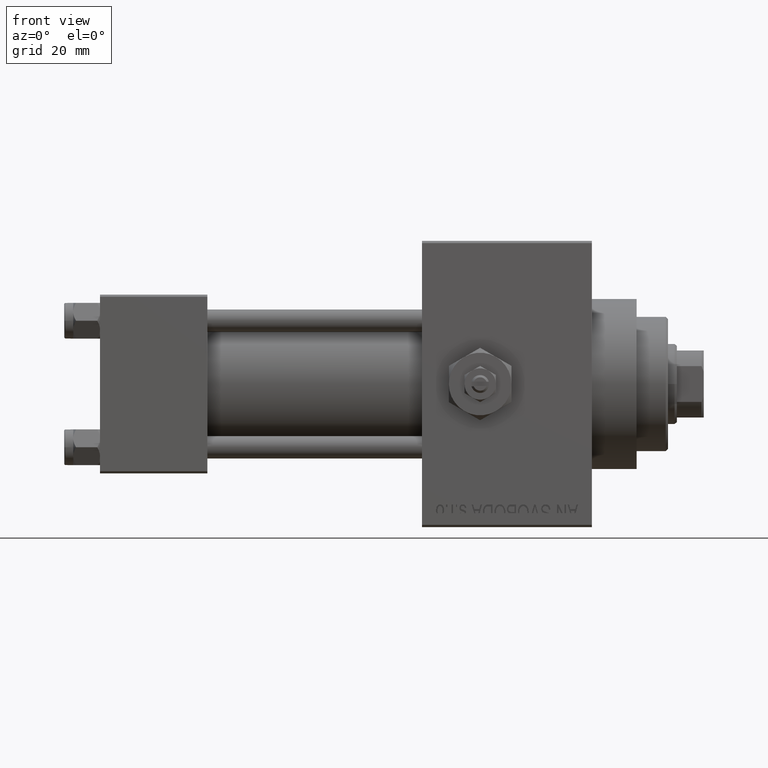
[diagram: clean part render]
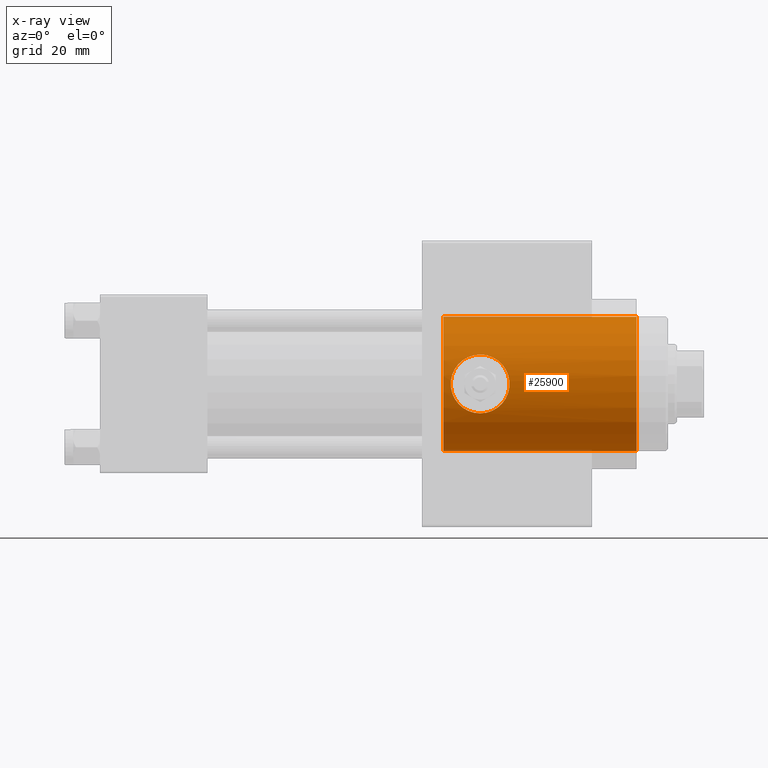
[diagram: x-ray — body ghosted, one internal face saturated and labeled with its STEP entity id]
A machine part, front view, then the same camera in x-ray: the body is ghosted and one INTERNAL B-rep face — a face not visible from any outside direction — is saturated and labeled: STEP entity #25900.
In plain terms, the highlighted cylindrical surface (partial cylindrical patch) has radius 15 mm, axis along (1, 0, 0).
Its self-contained STEP definition (entity closure, byte-faithful):
#504 = CARTESIAN_POINT ( 'NONE',  ( 82.86167835274309823, -13.64268446355265851, 6.237809613683829468 ) ) ;
#651 = CARTESIAN_POINT ( 'NONE',  ( 85.00000000000000000, -13.47974777212095709, 6.580000000000003624 ) ) ;
#979 = CARTESIAN_POINT ( 'NONE',  ( 79.77579147565592166, -14.45501835222666820, 4.023081544292846701 ) ) ;
#1458 = CARTESIAN_POINT ( 'NONE',  ( 80.65891463605996137, -14.16065007311136270, -4.949399701149224562 ) ) ;
#2413 = CARTESIAN_POINT ( 'NONE',  ( 84.77976576957225063, -13.47974777212095887, -6.580000000000001847 ) ) ;
#2535 = CARTESIAN_POINT ( 'NONE',  ( 91.52575784058699071, -14.97627231213754584, 0.8711763860930707981 ) ) ;
#2764 = CARTESIAN_POINT ( 'NONE',  ( 88.31096684123878049, -13.87618552960414675, -5.702370364627030952 ) ) ;
#3009 = CARTESIAN_POINT ( 'NONE',  ( 88.48650847152661925, -13.92228281461390793, 5.584478018863566540 ) ) ;
#3256 = CARTESIAN_POINT ( 'NONE',  ( 85.87316574373049605, -13.50139811867546058, -6.536143893246464387 ) ) ;
#3925 = CARTESIAN_POINT ( 'NONE',  ( 78.46260593799071614, -14.98115675273381520, -0.8665568099934203294 ) ) ;
#4411 = CARTESIAN_POINT ( 'NONE',  ( 78.43084565717524015, -14.99523278132284787, 0.4364235941210448666 ) ) ;
#4615 = VERTEX_POINT ( 'NONE', #25507 ) ;
#4651 = CARTESIAN_POINT ( 'NONE',  ( 84.13064385872415585, -13.50600289092207440, 6.525983889071675925 ) ) ;
#5419 = VECTOR ( 'NONE', #6823, 1000.000000000000000 ) ;
#6352 = EDGE_CURVE ( 'NONE', #40013, #47693, #23559, .T. ) ;
#6460 = CARTESIAN_POINT ( 'NONE',  ( 90.70288243393881089, -14.63479585642885361, -3.310293569519745738 ) ) ;
#6823 = DIRECTION ( 'NONE',  ( 1.000000000000000000, -0.000000000000000000, -0.000000000000000000 ) ) ;
#6943 = CARTESIAN_POINT ( 'NONE',  ( 91.56927314805587059, -14.99528481447028838, 0.4348723903635141053 ) ) ;
#7581 = CARTESIAN_POINT ( 'NONE',  ( 120.0000000000000142, 0.000000000000000000, -15.00000000000000000 ) ) ;
#7850 = CARTESIAN_POINT ( 'NONE',  ( 79.30090292776975502, -14.63334225918083220, -3.316404157168713507 ) ) ;
#8101 = CARTESIAN_POINT ( 'NONE',  ( 82.26430108105013517, -13.75315794831779037, 5.988232083493421065 ) ) ;
#8643 = ORIENTED_EDGE ( 'NONE', *, *, #13142, .T. ) ;
#9304 = CARTESIAN_POINT ( 'NONE',  ( 83.90805391893893272, -13.52226282640780752, -6.492353317420135994 ) ) ;
#9798 = CARTESIAN_POINT ( 'NONE',  ( 82.86239657777149148, -13.64255120362250828, -6.238110883350524993 ) ) ;
#10268 = CARTESIAN_POINT ( 'NONE',  ( 76.74000000000000909, 0.000000000000000000, -15.00000000000000000 ) ) ;
#10390 = CARTESIAN_POINT ( 'NONE',  ( 89.50269527074148357, -14.21118671985628445, -4.802809199700705634 ) ) ;
#10571 = CARTESIAN_POINT ( 'NONE',  ( 76.74000000000000909, 0.000000000000000000, 0.000000000000000000 ) ) ;
#10884 = CARTESIAN_POINT ( 'NONE',  ( 87.13878146177962947, -13.64286136602062349, 6.237365205955837766 ) ) ;
#11134 = CARTESIAN_POINT ( 'NONE',  ( 91.40804349032757159, -14.92531832247590984, -1.510180672733296481 ) ) ;
#11560 = CARTESIAN_POINT ( 'NONE',  ( 78.76236211784039654, -14.85223465257905495, -2.138549503236193861 ) ) ;
#11835 = AXIS2_PLACEMENT_3D ( 'NONE', #10571, #14268, #28815 ) ;
#12039 = CARTESIAN_POINT ( 'NONE',  ( 80.49983985398333175, -14.21037004882084176, -4.805272457217937720 ) ) ;
#12277 = CARTESIAN_POINT ( 'NONE',  ( 78.63638581349505330, -14.90614495936063832, 1.729077508135216101 ) ) ;
#12511 = CARTESIAN_POINT ( 'NONE',  ( 78.50728137029052789, -14.96186780496583957, 1.090058911884875137 ) ) ;
#12749 = CARTESIAN_POINT ( 'NONE',  ( 81.15751958955149803, -14.01568356182468023, -5.345718961352345033 ) ) ;
#12916 = CARTESIAN_POINT ( 'NONE',  ( 76.74000000000000909, 1.836970198721029589E-15, 15.00000000000000000 ) ) ;
#13142 = EDGE_CURVE ( 'NONE', #47693, #40013, #23669, .T. ) ;
#13343 = EDGE_CURVE ( 'NONE', #4615, #37387, #15470, .T. ) ;
#13840 = CARTESIAN_POINT ( 'NONE',  ( 89.01940850816782813, -14.06206651057377144, 5.227207620255431841 ) ) ;
#14268 = DIRECTION ( 'NONE',  ( 1.000000000000000000, -0.000000000000000000, -0.000000000000000000 ) ) ;
#14330 = CARTESIAN_POINT ( 'NONE',  ( 87.73052902550057297, -13.75215651404907291, 5.990516584930650978 ) ) ;
#14577 = CARTESIAN_POINT ( 'NONE',  ( 90.69892933739659213, -14.63327528768227026, 3.316712846527268610 ) ) ;
#14699 = LINE ( 'NONE', #10268, #5419 ) ;
#14829 = CARTESIAN_POINT ( 'NONE',  ( 88.84399376657893299, -14.01607983476660557, -5.344707122218380846 ) ) ;
#14956 = ORIENTED_EDGE ( 'NONE', *, *, #13343, .T. ) ;
#15253 = CARTESIAN_POINT ( 'NONE',  ( 79.30105177495190105, -14.63329121316046333, 3.316553775544765603 ) ) ;
#15470 = CIRCLE ( 'NONE', #42986, 15.00000000000000000 ) ;
#15726 = CARTESIAN_POINT ( 'NONE',  ( 78.42006756141506685, -14.99997036306039533, 0.2190733554723955645 ) ) ;
#15969 = CARTESIAN_POINT ( 'NONE',  ( 80.65624331521809154, -14.16146637753285020, 4.947074378092639613 ) ) ;
#16206 = CARTESIAN_POINT ( 'NONE',  ( 79.09399458136050498, -14.71603582678075384, 2.932578663241304007 ) ) ;
#17421 = CARTESIAN_POINT ( 'NONE',  ( 81.69173184761270079, -13.87856594946466515, -5.691879387518341105 ) ) ;
#17537 = CARTESIAN_POINT ( 'NONE',  ( 90.90247971338871480, -14.71460193619369505, 2.940356773719579486 ) ) ;
#17771 = CARTESIAN_POINT ( 'NONE',  ( 87.14192174141366820, -13.64329079840355341, -6.236468868897489415 ) ) ;
#18013 = CARTESIAN_POINT ( 'NONE',  ( 91.23769844279932784, -14.85224310456072772, 2.139178080577201158 ) ) ;
#18264 = CARTESIAN_POINT ( 'NONE',  ( 91.53660967087539291, -14.98081735429027006, -0.8707480482462675031 ) ) ;
#18933 = CARTESIAN_POINT ( 'NONE',  ( 78.63525833330918147, -14.90662513822958957, -1.725834680156186129 ) ) ;
#19279 = AXIS2_PLACEMENT_3D ( 'NONE', #29786, #29532, #37392 ) ;
#19641 = EDGE_CURVE ( 'NONE', #33878, #37387, #14699, .T. ) ;
#20919 = CARTESIAN_POINT ( 'NONE',  ( 85.00000000000000000, -13.47974777212095887, -6.580000000000001847 ) ) ;
#21220 = CARTESIAN_POINT ( 'NONE',  ( 90.22411835450370177, -14.45495742940398465, -4.023617649562320153 ) ) ;
#21461 = CARTESIAN_POINT ( 'NONE',  ( 91.15299919068861811, -14.81746657544790047, -2.341560291187426923 ) ) ;
#21703 = CARTESIAN_POINT ( 'NONE',  ( 91.58012121812991779, -15.00005317434620622, 0.2142933741435528450 ) ) ;
#21943 = CARTESIAN_POINT ( 'NONE',  ( 85.43405175477769831, -13.47974777212095354, 6.580000000000002736 ) ) ;
#22219 = ORIENTED_EDGE ( 'NONE', *, *, #6352, .T. ) ;
#22795 = DIRECTION ( 'NONE',  ( 1.000000000000000000, 0.000000000000000000, 0.000000000000000000 ) ) ;
#23107 = CARTESIAN_POINT ( 'NONE',  ( 84.56596667356100738, -13.48498123534775495, 6.569312056245872888 ) ) ;
#23339 = CARTESIAN_POINT ( 'NONE',  ( 83.27345649452969667, -13.58324995945014102, 6.364304702644875356 ) ) ;
#23559 = B_SPLINE_CURVE_WITH_KNOTS ( 'NONE', 3,
 ( #29855, #29115, #3256, #44146, #17771, #40195, #2764, #14829, #43906, #28880, #10390, #25151, #21220, #6460, #36244, #21461, #36484, #47605, #11134, #18264, #40435, #21703, #6943, #2535, #48584, #36725, #18013, #17537, #14577, #32563, #40682, #44639, #13840, #3009, #33036, #48091, #14330, #10884, #29363, #44391, #21943, #36966 ),
 .UNSPECIFIED., .F., .F.,
 ( 4, 2, 2, 2, 2, 2, 2, 2, 2, 2, 2, 2, 2, 2, 2, 2, 2, 2, 2, 2, 4 ),
 ( 0.000000000000000000, 0.001302447285417393042, 0.002604894570834786083, 0.003907341856252179342, 0.004558565498960859275, 0.005209789141669538340, 0.006512236427086923359, 0.007814683712504310112, 0.008465907355212994381, 0.009117130997921680385, 0.01041957828333906107, 0.01107080192604775054, 0.01172202556875643828, 0.01302447285417381896, 0.01432692013959119791, 0.01562936742500857859, 0.01693181471042595407, 0.01758303835313464528, 0.01823426199584333648, 0.01953670928126067380, 0.02083915656667801111 ),
 .UNSPECIFIED. ) ;
#23572 = CARTESIAN_POINT ( 'NONE',  ( 81.69095337298264781, -13.87874643593712776, 5.691444089594273059 ) ) ;
#23669 = B_SPLINE_CURVE_WITH_KNOTS ( 'NONE', 3,
 ( #30998, #37898, #23107, #4651, #34674, #23339, #504, #8101, #30525, #23572, #38137, #45552, #46274, #15969, #41846, #37648, #979, #15253, #16206, #31234, #12277, #12511, #27297, #4411, #15726, #27530, #3925, #18933, #11560, #30279, #7850, #45311, #26572, #12039, #1458, #28021, #12749, #35883, #17421, #32446, #32201, #9798, #47489, #9304, #43053, #36119, #2413, #47245 ),
 .UNSPECIFIED., .F., .F.,
 ( 4, 2, 2, 2, 2, 2, 2, 2, 2, 2, 2, 2, 2, 2, 2, 2, 2, 2, 2, 2, 2, 2, 2, 4 ),
 ( 0.02083915656667801111, 0.02148971759061579431, 0.02214027861455357751, 0.02344140066242914044, 0.02409196168636692365, 0.02474252271030470685, 0.02539308373424248658, 0.02604364475818026978, 0.02734476680605580495, 0.02864588885393133666, 0.02994701090180687184, 0.03059757192574464116, 0.03124813294968240701, 0.03254925499755794566, 0.03385037704543347736, 0.03515149909330901601, 0.03645262114118455465, 0.03710318216512233092, 0.03775374318906012105, 0.03840430421299789732, 0.03905486523693568052, 0.04035598728481123998, 0.04100654830874904400, 0.04165710933268684801 ),
 .UNSPECIFIED. ) ;
#25100 = VERTEX_POINT ( 'NONE', #39884 ) ;
#25151 = CARTESIAN_POINT ( 'NONE',  ( 89.95193023626804063, -14.35775282579813172, -4.353636477094011248 ) ) ;
#25312 = EDGE_CURVE ( 'NONE', #25100, #4615, #32130, .T. ) ;
#25507 = CARTESIAN_POINT ( 'NONE',  ( 120.0000000000000142, 1.836970198721029589E-15, 15.00000000000000000 ) ) ;
#25900 = ADVANCED_FACE ( 'NONE', ( #29539, #32740 ), #48271, .F. ) ;
#26343 = EDGE_LOOP ( 'NONE', ( #48662, #38892, #14956, #41867 ) ) ;
#26572 = CARTESIAN_POINT ( 'NONE',  ( 80.04629085474375927, -14.35831245774743792, -4.352000070746988136 ) ) ;
#27027 = EDGE_LOOP ( 'NONE', ( #22219, #8643 ) ) ;
#27297 = CARTESIAN_POINT ( 'NONE',  ( 78.47433736855526831, -14.97623083975537739, 0.8717692090942685823 ) ) ;
#27530 = CARTESIAN_POINT ( 'NONE',  ( 78.41986582468578604, -15.00005885823555118, -0.4320305088093541190 ) ) ;
#28021 = CARTESIAN_POINT ( 'NONE',  ( 80.98739416038097261, -14.06342753315277072, -5.219250321129030645 ) ) ;
#28815 = DIRECTION ( 'NONE',  ( 0.000000000000000000, 0.000000000000000000, -1.000000000000000000 ) ) ;
#28880 = CARTESIAN_POINT ( 'NONE',  ( 89.34571810031498273, -14.16206893639053455, -4.945350623307062321 ) ) ;
#29115 = CARTESIAN_POINT ( 'NONE',  ( 85.44091709312738203, -13.47974777212095532, -6.580000000000000959 ) ) ;
#29363 = CARTESIAN_POINT ( 'NONE',  ( 86.72738229337593907, -13.58322368116303913, 6.364371117434819425 ) ) ;
#29532 = DIRECTION ( 'NONE',  ( 1.000000000000000000, 0.000000000000000000, 0.000000000000000000 ) ) ;
#29539 = FACE_BOUND ( 'NONE', #27027, .T. ) ;
#29786 = CARTESIAN_POINT ( 'NONE',  ( 76.74000000000000909, 0.000000000000000000, 0.000000000000000000 ) ) ;
#29855 = CARTESIAN_POINT ( 'NONE',  ( 85.00000000000000000, -13.47974777212095887, -6.580000000000001847 ) ) ;
#30279 = CARTESIAN_POINT ( 'NONE',  ( 79.09395721718534844, -14.71604869449521225, -2.932606174430444579 ) ) ;
#30525 = CARTESIAN_POINT ( 'NONE',  ( 82.06829908847711863, -13.79364648263419646, 5.894697207671347527 ) ) ;
#30998 = CARTESIAN_POINT ( 'NONE',  ( 85.00000000000000000, -13.47974777212095709, 6.580000000000003624 ) ) ;
#31234 = CARTESIAN_POINT ( 'NONE',  ( 78.76285658914041221, -14.85202909967944329, 2.139850390440423578 ) ) ;
#31474 = VECTOR ( 'NONE', #32371, 1000.000000000000000 ) ;
#32130 = LINE ( 'NONE', #12916, #31474 ) ;
#32201 = CARTESIAN_POINT ( 'NONE',  ( 82.26391858364705456, -13.75322890288301636, -5.988071678680281451 ) ) ;
#32371 = DIRECTION ( 'NONE',  ( 1.000000000000000000, -0.000000000000000000, -0.000000000000000000 ) ) ;
#32446 = CARTESIAN_POINT ( 'NONE',  ( 82.06828371259754817, -13.79365488314685884, -5.894672912073675164 ) ) ;
#32563 = CARTESIAN_POINT ( 'NONE',  ( 90.22296890531289648, -14.45456171035007920, 4.024795089578230289 ) ) ;
#32740 = FACE_OUTER_BOUND ( 'NONE', #26343, .T. ) ;
#33036 = CARTESIAN_POINT ( 'NONE',  ( 88.30108931628259938, -13.87684958374495459, 5.696061878517235222 ) ) ;
#33338 = CARTESIAN_POINT ( 'NONE',  ( 76.74000000000000909, 0.000000000000000000, -15.00000000000000000 ) ) ;
#33878 = VERTEX_POINT ( 'NONE', #33338 ) ;
#34674 = CARTESIAN_POINT ( 'NONE',  ( 83.91258178764387310, -13.52187524401549013, 6.493162044607660555 ) ) ;
#35883 = CARTESIAN_POINT ( 'NONE',  ( 81.50968890162147318, -13.92325398619109755, -5.582033263514126098 ) ) ;
#36119 = CARTESIAN_POINT ( 'NONE',  ( 84.55859862117422665, -13.48521609401838894, -6.568831096952392201 ) ) ;
#36244 = CARTESIAN_POINT ( 'NONE',  ( 90.90496100314864236, -14.71561861235571200, -2.934527236679816298 ) ) ;
#36484 = CARTESIAN_POINT ( 'NONE',  ( 91.22642608447475254, -14.84818643133567306, -2.138984829998647363 ) ) ;
#36725 = CARTESIAN_POINT ( 'NONE',  ( 91.36499013257602542, -14.90673487989739243, 1.723694413479796683 ) ) ;
#36966 = CARTESIAN_POINT ( 'NONE',  ( 85.00000000000000000, -13.47974777212095709, 6.580000000000003624 ) ) ;
#37387 = VERTEX_POINT ( 'NONE', #7581 ) ;
#37392 = DIRECTION ( 'NONE',  ( 0.000000000000000000, 0.000000000000000000, -1.000000000000000000 ) ) ;
#37648 = CARTESIAN_POINT ( 'NONE',  ( 80.04477404318275546, -14.35885351510375685, 4.350166670407225489 ) ) ;
#37898 = CARTESIAN_POINT ( 'NONE',  ( 84.78319494601295503, -13.47974777212096242, 6.580000000000003624 ) ) ;
#38137 = CARTESIAN_POINT ( 'NONE',  ( 81.50854604787427604, -13.92353663429971533, 5.581335305475837671 ) ) ;
#38175 = CIRCLE ( 'NONE', #19279, 15.00000000000000000 ) ;
#38892 = ORIENTED_EDGE ( 'NONE', *, *, #25312, .T. ) ;
#39884 = CARTESIAN_POINT ( 'NONE',  ( 76.74000000000000909, 1.836970198721029589E-15, 15.00000000000000000 ) ) ;
#40013 = VERTEX_POINT ( 'NONE', #20919 ) ;
#40195 = CARTESIAN_POINT ( 'NONE',  ( 87.93549082565196784, -13.79016538881783482, -5.904597049044161494 ) ) ;
#40435 = CARTESIAN_POINT ( 'NONE',  ( 91.57975445926743419, -14.99989228947895903, -0.4396576369081861557 ) ) ;
#40682 = CARTESIAN_POINT ( 'NONE',  ( 89.94767122397594505, -14.35626376569925888, 4.358576204424580602 ) ) ;
#41786 = DIRECTION ( 'NONE',  ( 0.000000000000000000, 0.000000000000000000, -1.000000000000000000 ) ) ;
#41846 = CARTESIAN_POINT ( 'NONE',  ( 80.49693698350255033, -14.21129406587662203, 4.802528194119439320 ) ) ;
#41867 = ORIENTED_EDGE ( 'NONE', *, *, #19641, .F. ) ;
#42986 = AXIS2_PLACEMENT_3D ( 'NONE', #45974, #22795, #41786 ) ;
#43053 = CARTESIAN_POINT ( 'NONE',  ( 84.12272966873509006, -13.50651032499738058, -6.524934783076413503 ) ) ;
#43906 = CARTESIAN_POINT ( 'NONE',  ( 89.01682385340079406, -14.06462955860984465, -5.216021925337312126 ) ) ;
#44146 = CARTESIAN_POINT ( 'NONE',  ( 86.72150176663784293, -13.58266914400428860, -6.365534311957658176 ) ) ;
#44391 = CARTESIAN_POINT ( 'NONE',  ( 85.86672476049621139, -13.50078989524305051, 6.537419788987847369 ) ) ;
#44639 = CARTESIAN_POINT ( 'NONE',  ( 89.34654763100799357, -14.16034374859561495, 4.958241700614722802 ) ) ;
#45311 = CARTESIAN_POINT ( 'NONE',  ( 79.77663109106883610, -14.45470791799034238, -4.024259088776566351 ) ) ;
#45418 = EDGE_CURVE ( 'NONE', #25100, #33878, #38175, .T. ) ;
#45552 = CARTESIAN_POINT ( 'NONE',  ( 81.15570704918302170, -14.01617672543312310, 5.344433197287080439 ) ) ;
#45974 = CARTESIAN_POINT ( 'NONE',  ( 120.0000000000000142, 0.000000000000000000, 0.000000000000000000 ) ) ;
#46274 = CARTESIAN_POINT ( 'NONE',  ( 80.98527633074684218, -14.06402908009890673, 5.217639399048804805 ) ) ;
#47245 = CARTESIAN_POINT ( 'NONE',  ( 85.00000000000000000, -13.47974777212095887, -6.580000000000001847 ) ) ;
#47489 = CARTESIAN_POINT ( 'NONE',  ( 83.27329279487680935, -13.58336116659819126, -6.364061093077208575 ) ) ;
#47605 = CARTESIAN_POINT ( 'NONE',  ( 91.35400523561416719, -14.90213545262843375, -1.723442878130792888 ) ) ;
#47693 = VERTEX_POINT ( 'NONE', #651 ) ;
#48091 = CARTESIAN_POINT ( 'NONE',  ( 87.92351769146442564, -13.79190775013060488, 5.898758844508492416 ) ) ;
#48271 = CYLINDRICAL_SURFACE ( 'NONE', #11835, 15.00000000000000000 ) ;
#48584 = CARTESIAN_POINT ( 'NONE',  ( 91.49330976721962827, -14.96212495205844206, 1.086408634742477730 ) ) ;
#48662 = ORIENTED_EDGE ( 'NONE', *, *, #45418, .F. ) ;